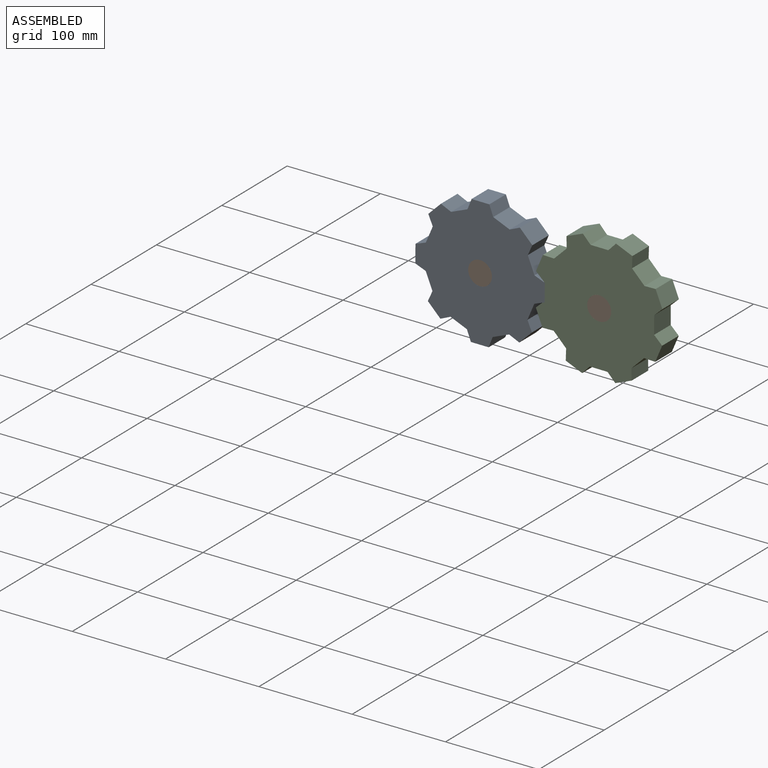
[diagram: assembled view]
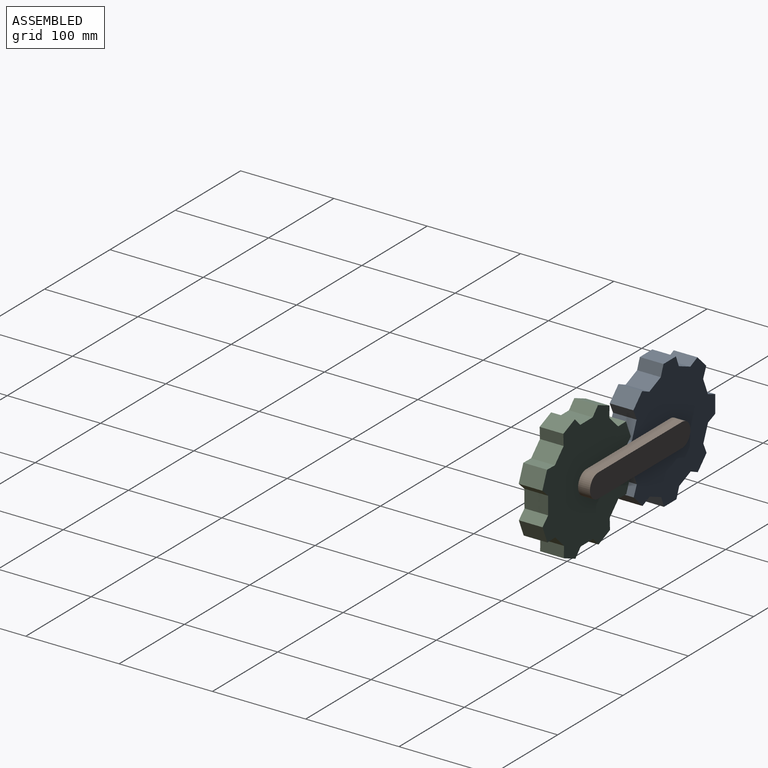
[diagram: assembled view, second angle]
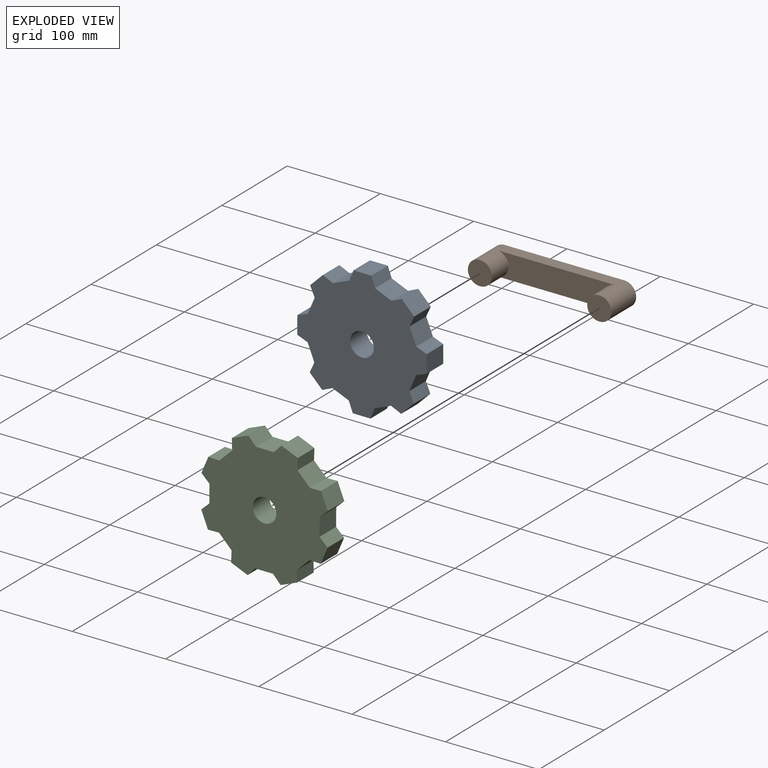
[diagram: exploded view]
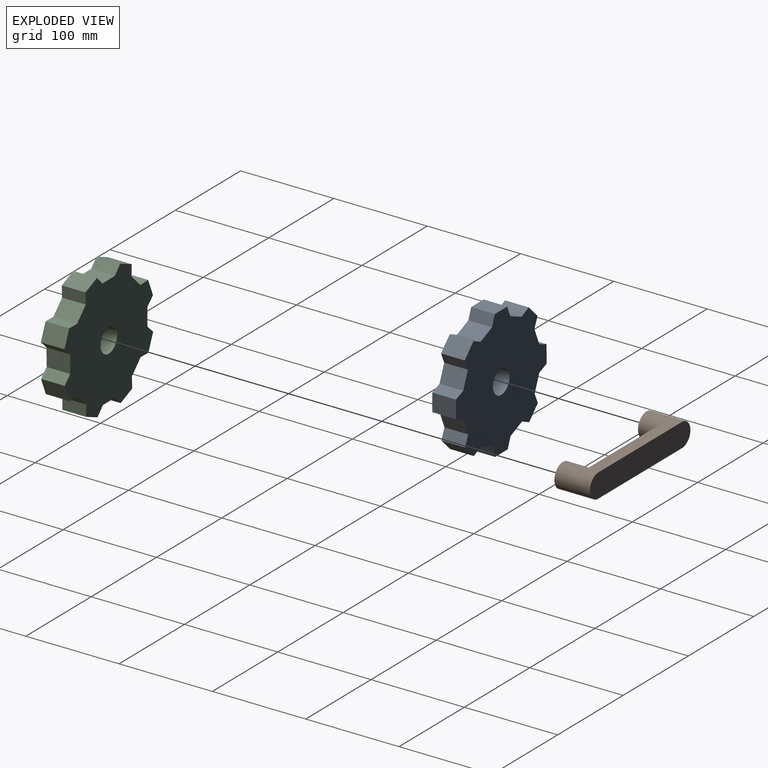
[diagram: exploded view, second angle]
ASSEMBLY  parts=3 mates=2
PART A: 35 faces, bbox 139.7x139.7x25.4 mm
  f0: plane 139.7x139.7mm, normal (0,0,1), area 12487mm2, adj f2,f3,f4,f5,f6,f7,f8,f9
  f1: plane 139.7x139.7mm, normal (0,0,-1), area 12487mm2, adj f2,f3,f4,f5,f6,f7,f8,f9
  f2: plane 25.4x15.83mm, normal (0.56,0.83,0), area 483.7mm2, adj f0,f1,f18,f27
  f3: plane 25.4x18.68mm, normal (-0.2,0.98,0), area 483.7mm2, adj f0,f1,f25,f29
  f4: plane 25.4x15.83mm, normal (-0.83,0.56,0), area 483.7mm2, adj f0,f1,f24,f30
  f5: plane 25.4x18.68mm, normal (-0.98,-0.2,0), area 483.7mm2, adj f0,f1,f23,f31
  f6: plane 25.4x15.83mm, normal (-0.56,-0.83,0), area 483.7mm2, adj f0,f1,f22,f33
  f7: plane 25.4x18.68mm, normal (0.2,-0.98,0), area 483.7mm2, adj f0,f1,f21,f32
  f8: plane 25.4x15.83mm, normal (0.83,-0.56,0), area 483.7mm2, adj f0,f1,f20,f28
  f9: plane 25.4x18.68mm, normal (0.98,0.2,0), area 483.7mm2, adj f0,f1,f19,f26
  f10: plane 25.4x15.85mm, normal (0.83,0.56,0), area 484.1mm2, adj f0,f1,f18,f26
  f11: plane 25.4x18.69mm, normal (0.98,-0.2,0), area 484.1mm2, adj f0,f1,f19,f28
  f12: plane 25.4x15.85mm, normal (0.56,-0.83,0), area 484.1mm2, adj f0,f1,f20,f32
  f13: plane 25.4x18.69mm, normal (-0.2,-0.98,0), area 484.1mm2, adj f0,f1,f21,f33
  f14: plane 25.4x15.85mm, normal (-0.83,-0.56,0), area 484.1mm2, adj f0,f1,f22,f31
  f15: plane 25.4x18.69mm, normal (-0.98,0.2,0), area 484.1mm2, adj f0,f1,f23,f30
  f16: plane 25.4x15.85mm, normal (-0.56,0.83,0), area 484.1mm2, adj f0,f1,f24,f29
  f17: plane 25.4x18.69mm, normal (0.2,0.98,0), area 484.1mm2, adj f0,f1,f25,f27
  f18: plane 25.4x11.63mm, normal (0.98,-0.22,0), area 303mm2, adj f0,f1,f2,f10
  f19: plane 25.4x10.1mm, normal (0.53,-0.85,0), area 303mm2, adj f0,f1,f9,f11
  f20: plane 25.4x11.63mm, normal (-0.22,-0.98,0), area 303mm2, adj f0,f1,f8,f12
  f21: plane 25.4x10.1mm, normal (-0.85,-0.53,0), area 303mm2, adj f0,f1,f7,f13
  f22: plane 25.4x11.63mm, normal (-0.98,0.22,0), area 303mm2, adj f0,f1,f6,f14
  f23: plane 25.4x10.1mm, normal (-0.53,0.85,0), area 303mm2, adj f0,f1,f5,f15
  f24: plane 25.4x11.63mm, normal (0.22,0.98,0), area 303mm2, adj f0,f1,f4,f16
  f25: plane 25.4x10.1mm, normal (0.85,0.53,0), area 303mm2, adj f0,f1,f3,f17
  f26: plane 25.4x11.76mm, normal (0.17,0.99,0), area 303mm2, adj f0,f1,f9,f10
  f27: plane 25.4x9.74mm, normal (-0.58,0.82,0), area 303mm2, adj f0,f1,f2,f17
  f28: plane 25.4x9.74mm, normal (0.82,0.58,0), area 303mm2, adj f0,f1,f8,f11
  f29: plane 25.4x11.76mm, normal (-0.99,0.17,0), area 303mm2, adj f0,f1,f3,f16
  f30: plane 25.4x9.74mm, normal (-0.82,-0.58,0), area 303mm2, adj f0,f1,f4,f15
  f31: plane 25.4x11.76mm, normal (-0.17,-0.99,0), area 303mm2, adj f0,f1,f5,f14
  f32: plane 25.4x11.76mm, normal (0.99,-0.17,0), area 303mm2, adj f0,f1,f7,f12
  f33: plane 25.4x9.74mm, normal (0.58,-0.82,0), area 303mm2, adj f0,f1,f6,f13
  f34: cylinder r=12.7mm len=25.4mm, axis (0,0,-1), area 2026.8mm2, adj f0,f1
PART B: 10 faces, bbox 153.7x38.1x25.4 mm
  f0: plane 25.82x25.4mm, normal (0,-1,0), area 517.4mm2, adj f1,f2,f6,f9
  f1: plane 128.35x38.1mm, normal (0,0,1), area 1651.3mm2, adj f0,f3,f4,f5,f6,f7,f8,f9
  f2: plane 128.35x38.1mm, normal (0,0,-1), area 1651.3mm2, adj f0,f3,f4,f5,f6,f7,f8,f9
  f3: plane 153.75x25.4mm, normal (0,1,0), area 3766.7mm2, adj f1,f2,f8,f9
  f4: plane 25.82x25.4mm, normal (0,-1,0), area 517.4mm2, adj f1,f2,f7,f8
  f5: plane 127.51x25.4mm, normal (0,-1,0), area 2732mm2, adj f1,f2,f6,f7
  f6: cylinder r=12.7mm len=25.4mm, axis (0,1,0), area 1013.4mm2, adj f0,f1,f2,f5
  f7: cylinder r=12.7mm len=25.4mm, axis (0,-1,0), area 1013.4mm2, adj f1,f2,f4,f5
  f8: cylinder r=12.7mm len=38.1mm, axis (0,1,0), area 1520.1mm2, adj f1,f2,f3,f4
  f9: cylinder r=12.7mm len=38.1mm, axis (0,-1,0), area 1520.1mm2, adj f0,f1,f2,f3
PART C: same geometry as A
PLACE A rot(axis=(-0.92,0.28,0.28),94.9deg) t=(-142.62,-14.92,63.62)mm
PLACE B t=(-91.37,-27.17,50.92)mm fixed
PLACE C rot(axis=(0.99,-0.09,0.09),90.5deg) t=(-15.11,10.48,63.62)mm
MATE revolute C.f34 <-> B.f6  axis (0,1,0) through (-15.11,-2.22,63.62)mm
MATE revolute A.f34 <-> B.f7  axis (0,-1,0) through (-142.62,-2.22,63.62)mm
